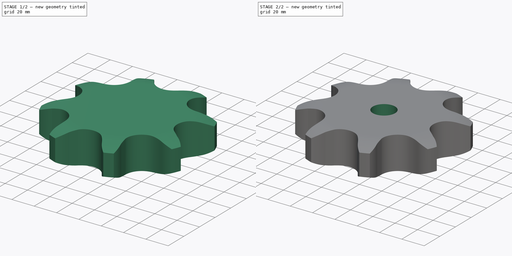
[diagram: build sequence overview — one tinted view per stage of 2, left to right]
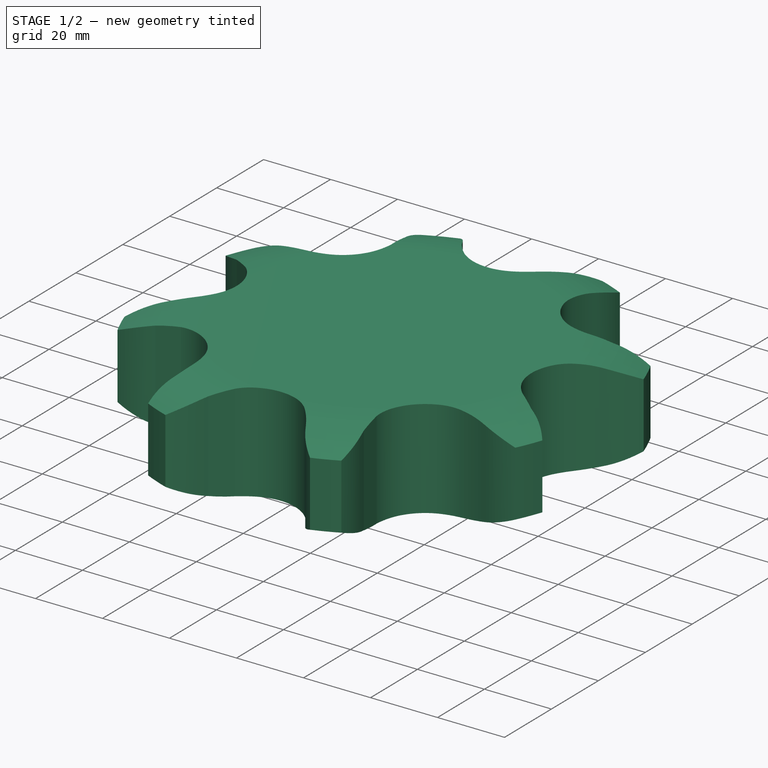
[diagram: stage 1 of 2 — iso view after this stage's code; geometry added in this stage tinted green]
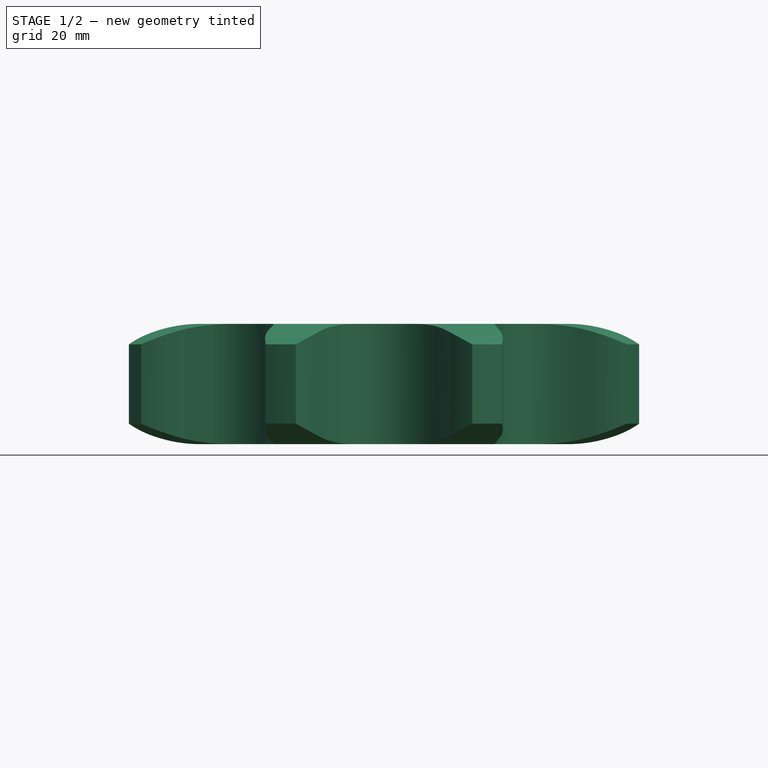
[diagram: stage 1 of 2 — front view after this stage's code; geometry added in this stage tinted green]
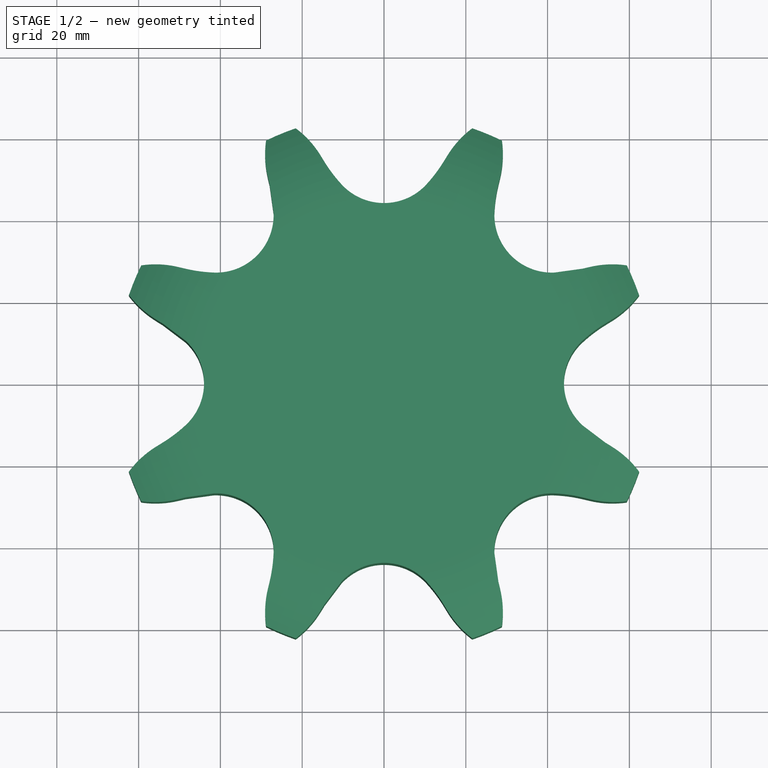
[diagram: stage 1 of 2 — top view after this stage's code; geometry added in this stage tinted green]
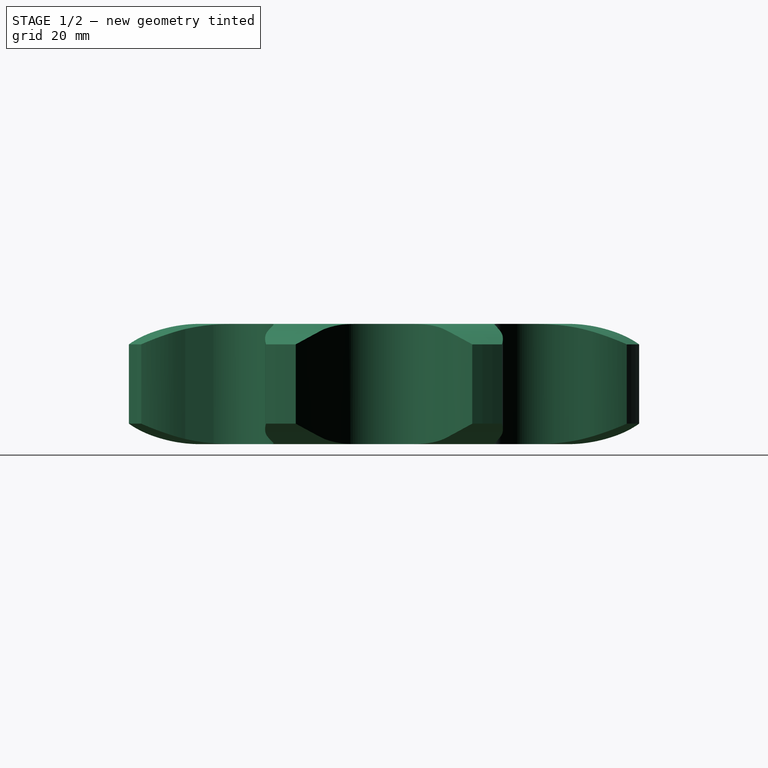
[diagram: stage 1 of 2 — right view after this stage's code; geometry added in this stage tinted green]
FCSTD DOCUMENT  (FreeCAD 0.20R29177 +233 (Git))
Label: Plate Wheel simplex 1 ¾ x 1 ¼
License: Attribution 4.0 International (CC BY 4.0)
LicenseURL: http://creativecommons.org/licenses/by/4.0/
objects: Sketcher::SketchObject×2, Spreadsheet::Sheet×1, Part::Part2DObjectPython×1, PartDesign::Pad×1, PartDesign::Groove×1, PartDesign::Pocket×1, PartDesign::Body×1
note: 10 computed .brp shape members not serialized (recipe doc carries the construction recipe); baked Part::Feature solids carry a one-line shape summary decoded from their .brp

FEATURE [Spreadsheet::Sheet] Spreadsheet  label="Data"
  TeethNumber = 0
  cells = A1=Teeth Number; B1=P (Pitch); C1=Wc (Chain width); D1=Dr (Roller diameter); E1=Tr (Tooth radius); F1=Rw (Radius width); G1=Wt (Tooth width); H1=z (Number of teeth); I1=De (External Diameter); J1=Dp (pitch diameter); K1=D (Hole diameter); L1=H (Total height); A2==hiddenref(.TeethNumber.String); B2(P)==.B3; C2(Wc)==.C3; D2(Dr)==.D3; E2(Tr)==.E3; F2(Rw)==.F3; G2(Wt)==.G3; H2(z)==.H3; I2(De)==.I3; J2(Dp)==.J3; K2(D)==.K3; L2(H)==.L3; A3=Z 8; B3=44.45; C3=30.99; D3=27.94; E3=44; F3=5; G3=29.4; H3=8; I3=132; J3=116.15; K3=20; L3=29.4; A4=Z 9; B4=44.45; C4=30.99; D4=27.94; E4=44; F4=5; G4=29.4; H4=9; I4=148.4; J4=129.96; K4=20; L4=29.4; A5=Z 10; B5=44.45; C5=30.99; D5=27.94; E5=44; F5=5; G5=29.4; H5=10; I5=162.3; J5=143.85; K5=20; L5=29.4; A6=Z 11; B6=44.45; C6=30.99; D6=27.94; E6=44; F6=5; G6=29.4; H6=11; I6=176.3; J6=157.77; K6=25; L6=29.4; A7=Z 12; B7=44.45; C7=30.99; D7=27.94; E7=44; F7=5; G7=29.4; H7=12; I7=189.5; J7=171.74; K7=25; L7=29.4; A8=Z 13; B8=44.45; C8=30.99; D8=27.94; E8=44; F8=5; G8=29.4; H8=13; I8=204.2; J8=185.74; K8=25; L8=29.4; A9=Z 14; B9=44.45; C9=30.99; D9=27.94; E9=44; F9=5; G9=29.4; H9=14; I9=218.2; J9=199.76; K9=25; L9=29.4; A10=Z 15; B10=44.45; C10=30.99; D10=27.94; E10=44; F10=5; G10=29.4; H10=15; I10=232.3; J10=213.79; K10=25; L10=29.4; A11=Z 16; B11=44.45; C11=30.99; D11=27.94; E11=44; F11=5; G11=29.4; H11=16; I11=246.3; J11=227.84; K11=30; L11=29.4; A12=Z 17; B12=44.45; C12=30.99; D12=27.94; E12=44; F12=5; G12=29.4; H12=17; I12=260; J12=241.91; K12=30; L12=29.4; A13=Z 18; B13=44.45; C13=30.99; D13=27.94; E13=44; F13=5; G13=29.4; H13=18; I13=274; J13=255.98; K13=30; L13=29.4; A14=Z 19; B14=44.45; C14=30.99; D14=27.94; E14=44; F14=5; G14=29.4; H14=19; I14=289; J14=270.06; K14=30; L14=29.4; A15=Z 20; B15=44.45; C15=30.99; D15=27.94; E15=44; F15=5; G15=29.4; H15=20; I15=303; J15=284.15; K15=30; L15=29.4; A16=Z 21; B16=44.45; C16=30.99; D16=27.94; E16=44; F16=5; G16=29.4; H16=21; I16=317; J16=298.24; K16=30; L16=29.4; A17=Z 22; B17=44.45; C17=30.99; D17=27.94; E17=44; F17=5; G17=29.4; H17=22; +100 more cells
  expr: .TeethNumber.Enum = cells[<<A3:|>>]
  expr: .cells.Bind.B2.ZZ2 = tuple(.cells; <<B>> + str(hiddenref(TeethNumber) + 3); <<ZZ>> + str(hiddenref(TeethNumber) + 3))
FEATURE [Part::Part2DObjectPython] Sprocket  label="Teeth sketch"  # Draft 2D object (typed FeaturePython)
  ANSISize = 140
  NumberOfTeeth = 8
  Pitch = 44.45
  RollerDiameter = 27.94
  expr: NumberOfTeeth = <<Data>>.z
  expr: Pitch = <<Data>>.P
  expr: RollerDiameter = <<Data>>.Dr
FEATURE [PartDesign::Pad] Pad  label="Teeth"
  Direction = (0,0,1)
  Length = 29.4
  Length2 = 100
  Profile = -> Sprocket
  Type = 0
  expr: Length = <<Data>>.Wt
FEATURE [Sketcher::SketchObject] Sketch  label="Radius"
  FullyConstrained = true
  MapMode = 5
  Placement = pos=(0,0,0) rot=(1,0,0;1.5708rad)
  Support = -> [XZ_Plane]
  expr: .Constraints.Re = <<Data>>.De / 2
  expr: .Constraints.Rw = <<Data>>.Rw
  expr: .Constraints.Tr = <<Data>>.Tr
  expr: .Constraints.Wt = <<Data>>.Wt
  sketch-geometry (15):
    g0: LineSegment StartX=76 StartY=29.4 StartZ=0 EndX=45.6285 EndY=29.4 EndZ=0
    g1: LineSegment StartX=76 StartY=29.4 StartZ=0 EndX=76 EndY=0 EndZ=0
    g2: LineSegment StartX=76 StartY=0 StartZ=0 EndX=45.6285 EndY=0 EndZ=0
    g3: ArcOfCircle CenterX=45.6285 CenterY=-14.6 CenterZ=0 NormalX=0 NormalY=0 NormalZ=1 AngleXU=0 Radius=44 StartAngle=1.08943 EndAngle=1.5708
    g4: LineSegment StartX=66 StartY=24.4 StartZ=0 EndX=66 EndY=5 EndZ=0
    g5: ArcOfCircle CenterX=45.6285 CenterY=44 CenterZ=0 NormalX=0 NormalY=0 NormalZ=1 AngleXU=0 Radius=44 StartAngle=4.71239 EndAngle=5.19375
    g6: LineSegment StartX=45.6285 StartY=29.4 StartZ=0 EndX=45.6285 EndY=0 EndZ=0
    g7: LineSegment StartX=76 StartY=29.4 StartZ=0 EndX=76 EndY=30.4 EndZ=0
    g8: LineSegment StartX=76 StartY=30.4 StartZ=0 EndX=45.6285 EndY=30.4 EndZ=0
    g9: LineSegment StartX=45.6285 StartY=30.4 StartZ=0 EndX=45.6285 EndY=29.4 EndZ=0
    g10: LineSegment StartX=76 StartY=0 StartZ=0 EndX=76 EndY=-1 EndZ=0
    g11: LineSegment StartX=76 StartY=-1 StartZ=0 EndX=45.6285 EndY=-1 EndZ=0
    g12: LineSegment StartX=45.6285 StartY=-1 StartZ=0 EndX=45.6285 EndY=0 EndZ=0
    g13: LineSegment StartX=66 StartY=24.4 StartZ=0 EndX=66 EndY=29.4 EndZ=0
    g14: LineSegment StartX=66 StartY=5 StartZ=0 EndX=66 EndY=0 EndZ=0
  constraints (43):
    c: Horizontal(g0)
    c: Coincident(g1,g0)
    c: PointOnObject(g1,g-1)
    c: Vertical(g1)
    c: Coincident(g2,g1)
    c: PointOnObject(g2,g-1)
    c: Coincident(g4,g3)
    c: Vertical(g4)
    c: Coincident(g5,g2)
    c: Coincident(g5,g4)
    c: DistanceY(g1,g1) = 29.4  'Wt'
    c: DistanceX(g4) = 66  'Re'
    c: Coincident(g6,g5)
    c: Vertical(g6)
    c: Coincident(g1,g7)
    c: Vertical(g7)
    c: Coincident(g7,g8)
    c: Horizontal(g8)
    c: Coincident(g8,g9)
    c: Vertical(g9)
    c: Coincident(g1,g10)
    c: Vertical(g10)
    c: Coincident(g10,g11)
    c: Horizontal(g11)
    c: Coincident(g11,g12)
    c: Coincident(g12,g5)
    c: Vertical(g12)
    c: DistanceY(g7,g7) = 1
    c: DistanceY(g10,g10) = 1
    c: Radius(g5) = 44  'Tr'
    c: Equal(g5,g3)
    c: DistanceY(g5,g4) = 5  'Rw'
    c: Coincident(g13,g3)
    c: PointOnObject(g13,g0)
    c: Vertical(g13)
    c: Coincident(g14,g4)
    c: PointOnObject(g14,g2)
    c: Vertical(g14)
    c: Equal(g13,g14)
    c: Tangent(g3,g0) = -1.5708
    c: Coincident(g3,g9)
    c: Coincident(g6,g3)
    c: DistanceX(g13,g1) = 10
FEATURE [PartDesign::Groove] Groove  label="Teeth Radius"
  Angle = 360
  Axis = (-3e-16,3e-16,1)
  Base = (0,0,0)
  BaseFeature = -> Pad
  Profile = -> Sketch
  ReferenceAxis = -> Z_Axis
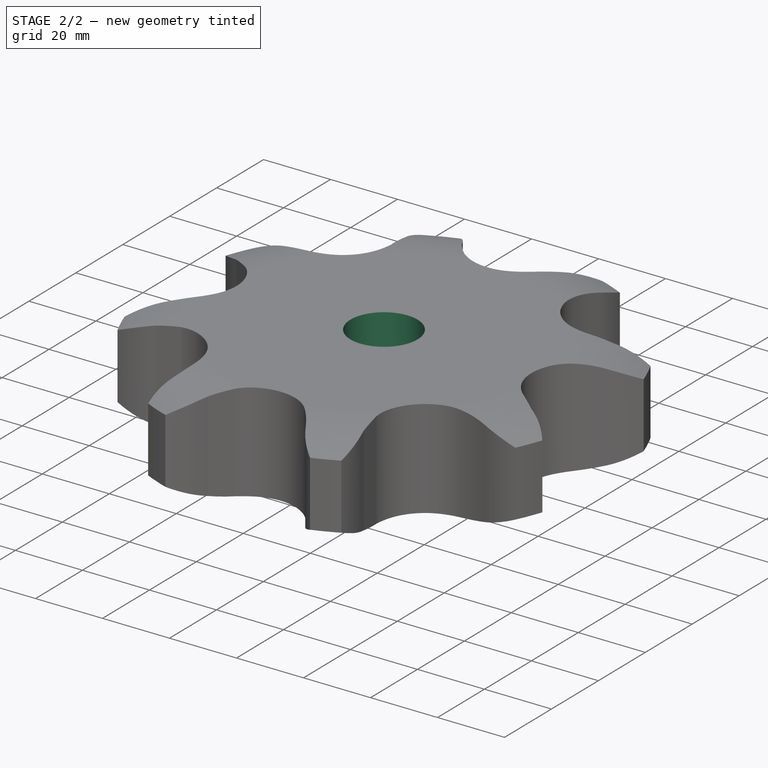
[diagram: stage 2 of 2 — iso view after this stage's code; geometry added in this stage tinted green]
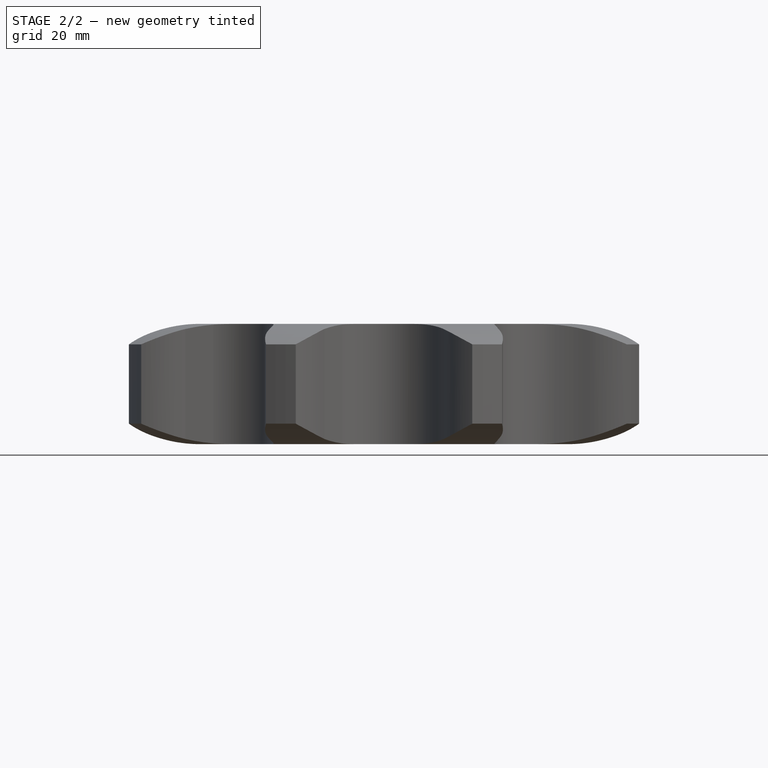
[diagram: stage 2 of 2 — front view after this stage's code; geometry added in this stage tinted green]
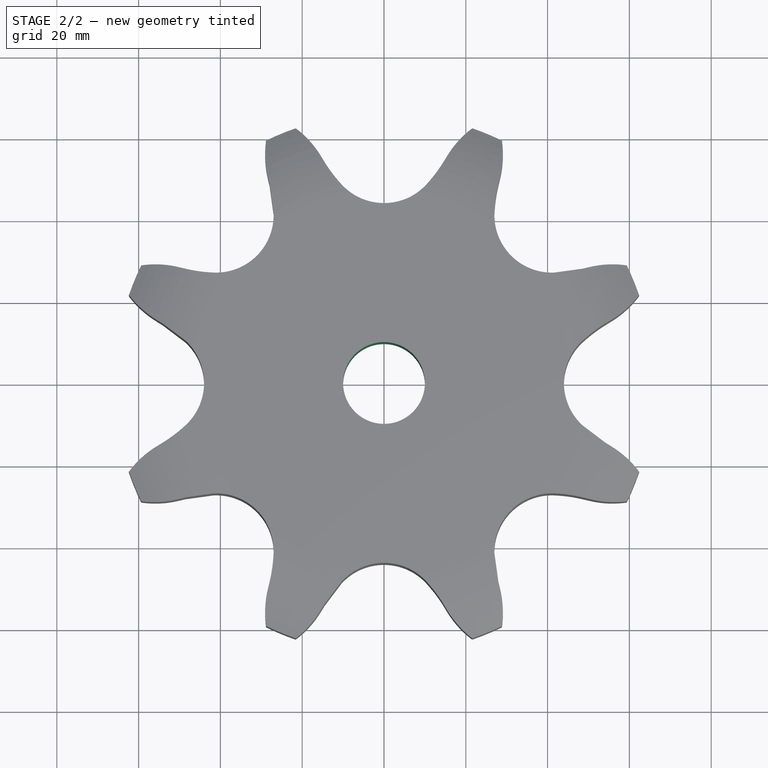
[diagram: stage 2 of 2 — top view after this stage's code; geometry added in this stage tinted green]
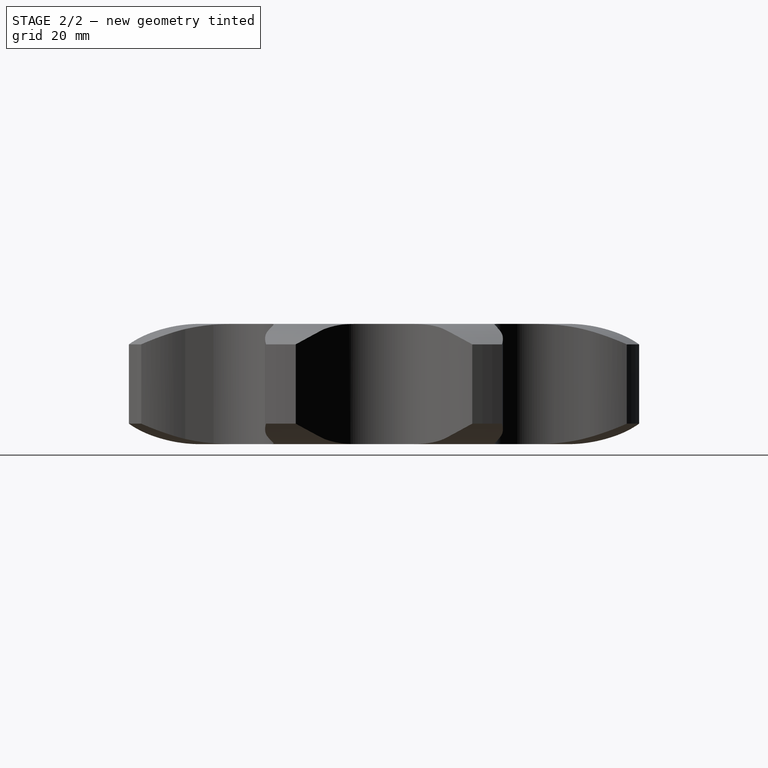
[diagram: stage 2 of 2 — right view after this stage's code; geometry added in this stage tinted green]
FEATURE [Sketcher::SketchObject] Sketch001  label="Hole Sketch"
  FullyConstrained = true
  MapMode = 5
  Support = -> [XY_Plane]
  expr: .Constraints.D = <<Data>>.D
  sketch-geometry (1):
    g0: Circle CenterX=0 CenterY=0 CenterZ=0 NormalX=0 NormalY=0 NormalZ=1 AngleXU=0 Radius=10
  constraints (2):
    c: Coincident(g0,g-1)
    c: Diameter(g0) = 20  'D'
FEATURE [PartDesign::Pocket] Pocket  label="Hole"
  BaseFeature = -> Groove
  Direction = (0,0,-1)
  Length = 5
  Length2 = 5
  Midplane = true
  Profile = -> Sketch001
  ReferenceAxis = -> Sketch001 [N_Axis]
  Type = 1
FEATURE [PartDesign::Body] Body  label="Plate Wheel simplex 1 ¾ x 1 ¼"
  Group = -> [Sprocket,Pad,Sketch,Groove,Sketch001,Pocket]
  Origin = -> Origin
  Tip = -> Pocket
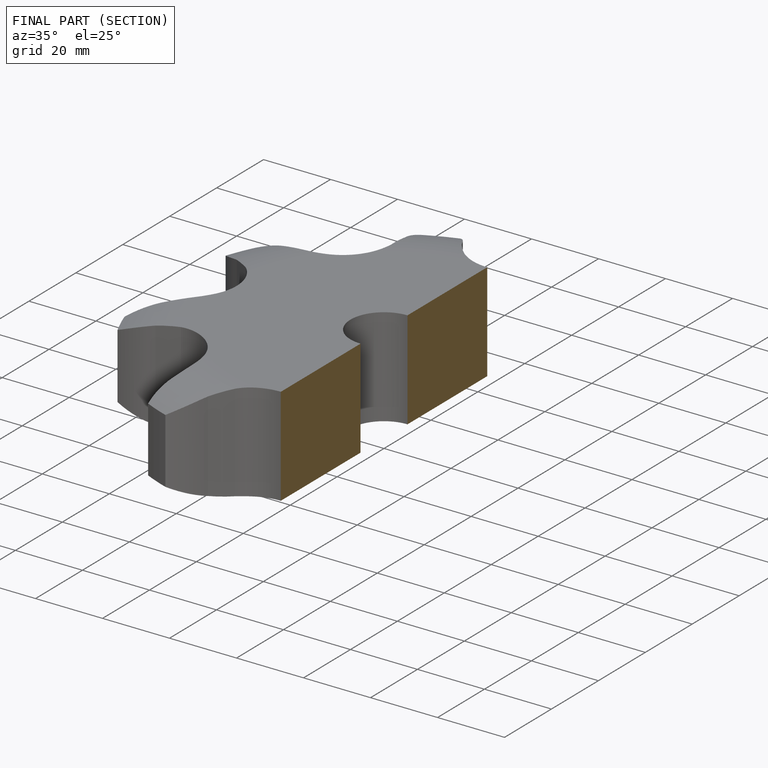
[diagram: finished part — half-section view (interior)]
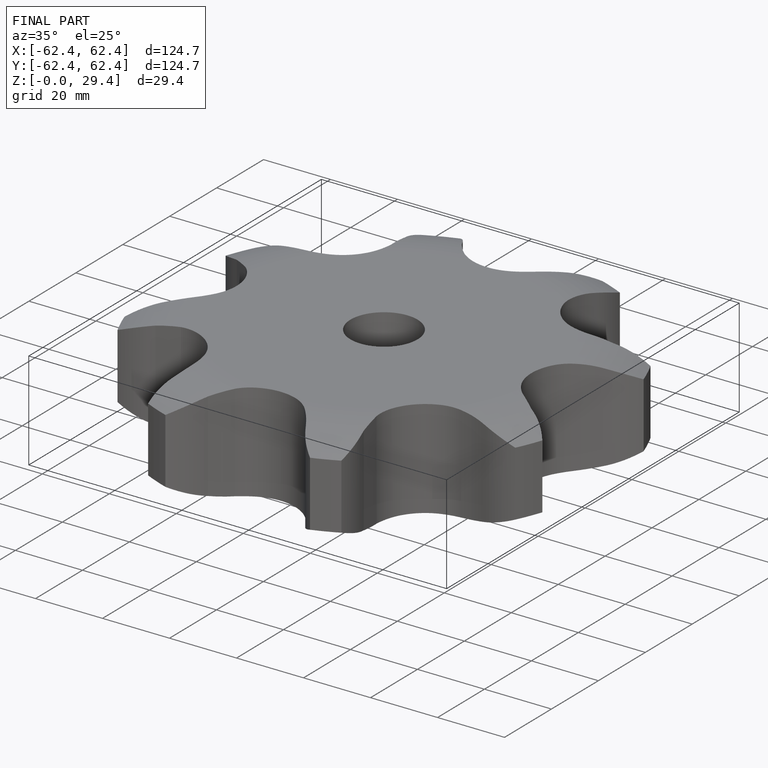
[diagram: finished part — iso view with bounding-box wireframe]
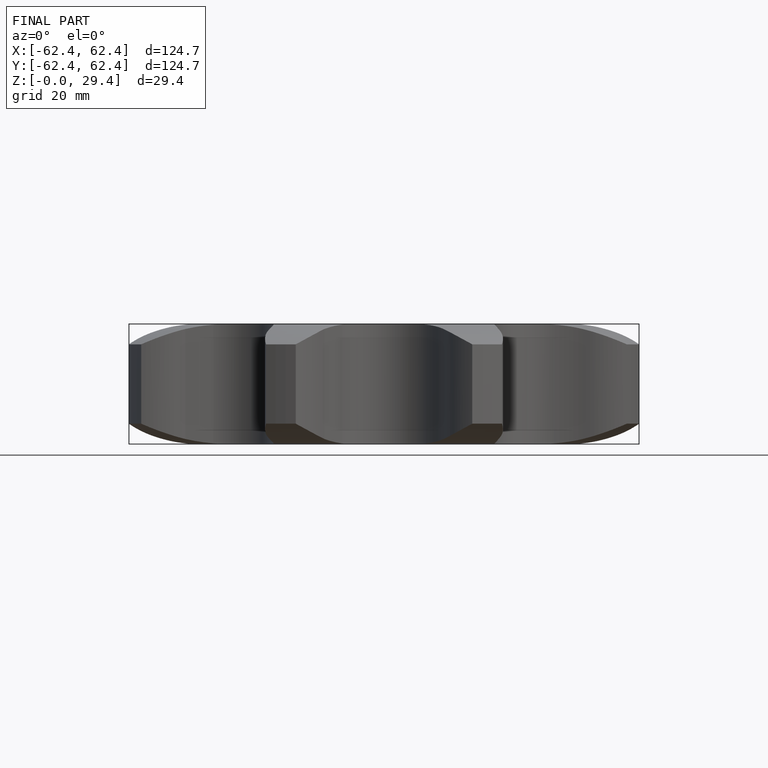
[diagram: finished part — front view with bounding-box wireframe]
